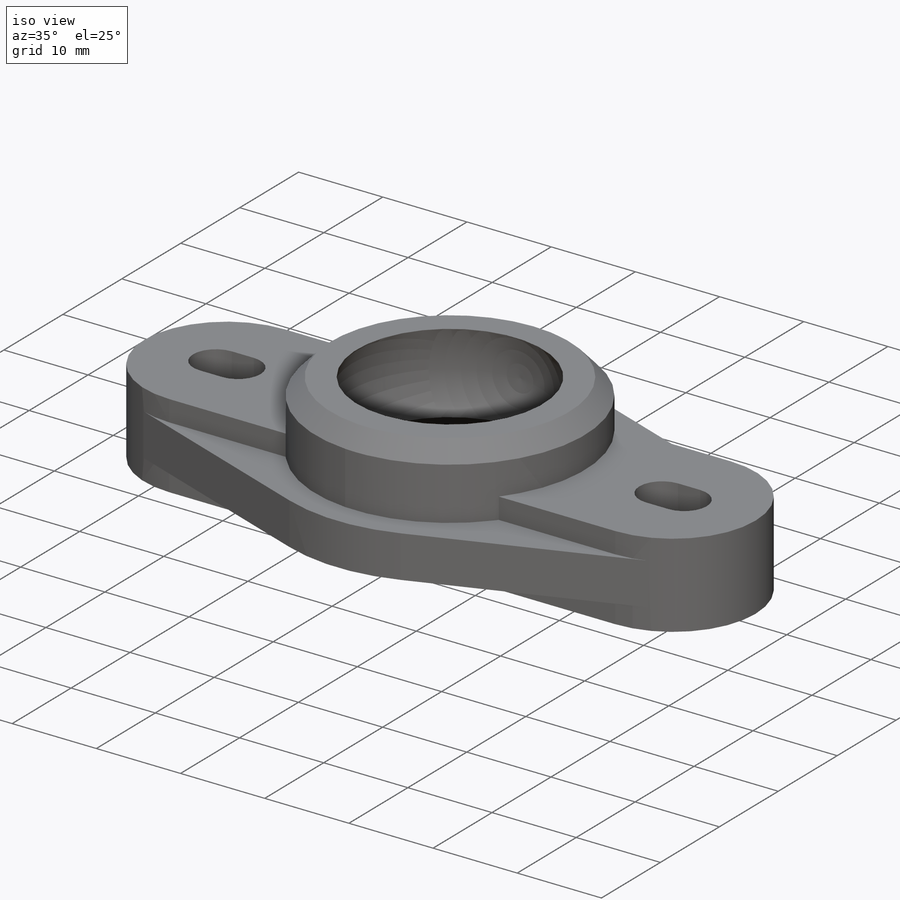
[diagram: iso view]
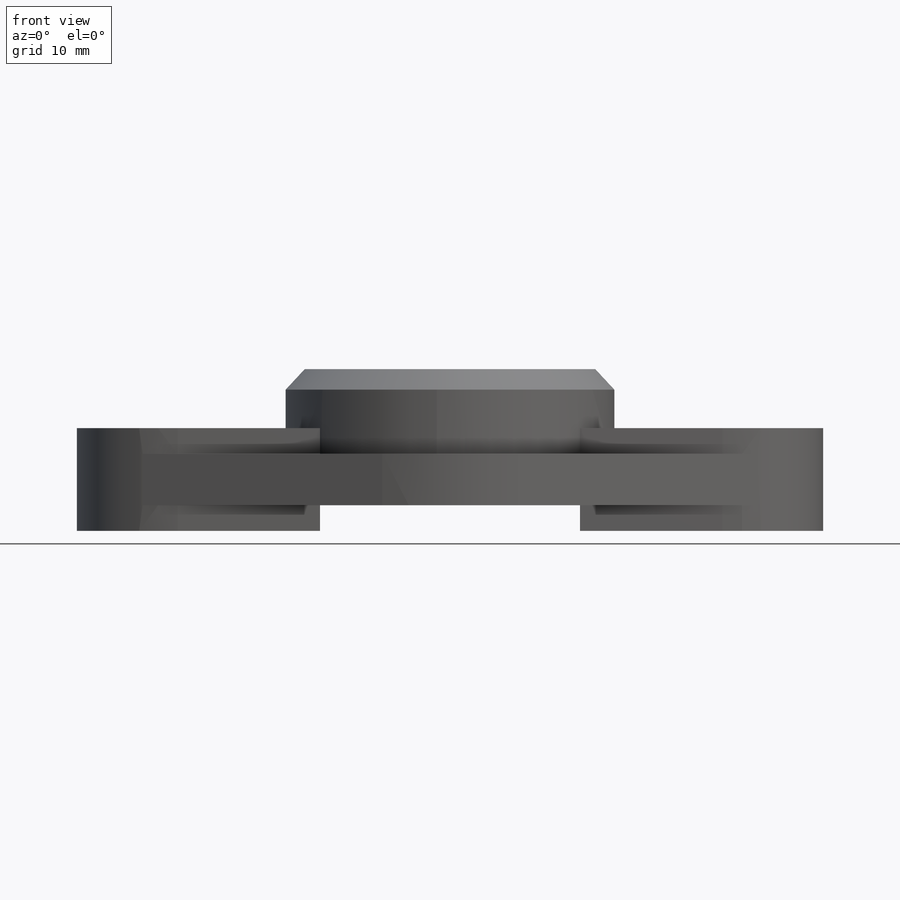
[diagram: front view]
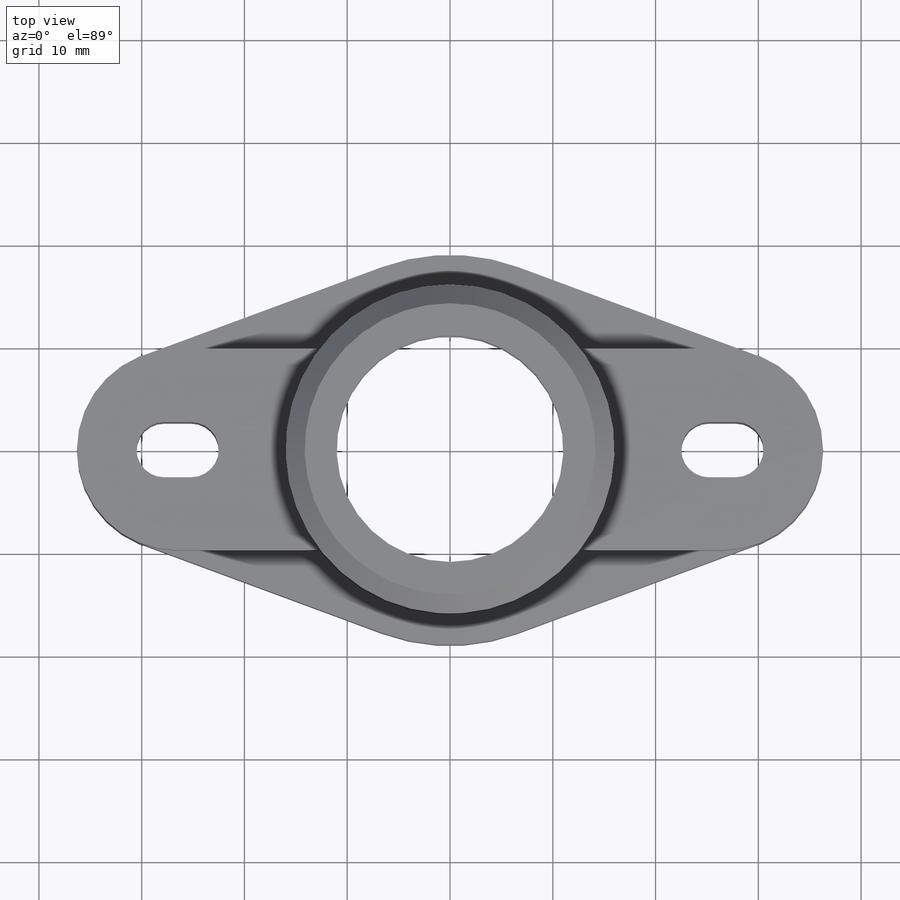
[diagram: top view]
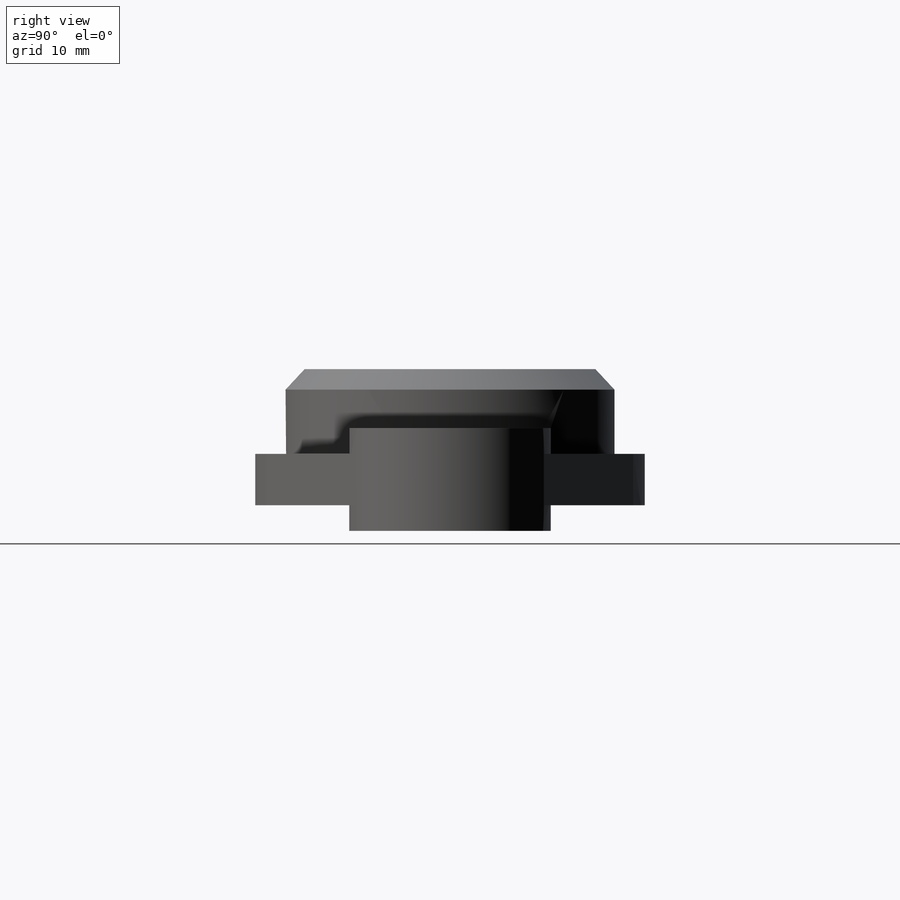
[diagram: right view]
SOLIDWORKS PART (.sldprt)
format: sldprt  version: not decoded by parser v0  size: 289,280 bytes
history: native  units: mm
features: sketch x8, extrude x3, cut_extrude x3, cut_revolve x2, material x1, chamfer x1, plane x1 (+13 scaffold rows collapsed)
feature tree (32):
  scaffold x13  (default folders/planes/origin — collapsed)
  material  "Material <not specified>"
  sketch  "Sketch1"  dims[c1.D2=~9.79932mm c1.D4=2.6924mm c1.D3=2.6924mm c2.D4=2.6924mm c2.D1=53.0098mm c2.D3=5.3848mm c3.D4=8.001mm c3.D5=2.6162mm]
  extrude  "Boss-Extrude1"  Depth=9.99998mm
  sketch  "Sketch2"  dims[D2=18.9992mm D1=37.9984mm]
  extrude  "Boss-Extrude2"  Depth=5.00126mm
  sketch  "Sketch4"  dims[D1=32.004mm]
  extrude  "Boss-Extrude3"  Depth=8.24992mm
  sketch  "Sketch5"  dims[D1=~22.060944mm]
  cut_extrude  "Cut-Extrude1"  [1 undecoded]
  sketch  "Sketch6"  dims[D1=~31.99892mm]
  cut_extrude  "Cut-Extrude2"  [1 undecoded]
  sketch  "Sketch7"  dims[D1=~3.74904mm D2=~3.46202mm]
  cut_revolve  "Cut-Revolve1"  Angle=360deg
  sketch  "Sketch8"  dims[D1=0.0mm]
  cut_extrude  "Cut-Extrude3"  Depth=9.4996mm
  chamfer  "Chamfer2"  Distance=1.99898mm
  plane  "Plane1"
  sketch  "Sketch9"  dims[D1=~24.00046mm]
  cut_revolve  "Cut-Revolve2"  Angle=360deg
decode coverage: 15 of 17 modeling features carry decoded parameters
note: ~ marks probable driven/reference dimensions
note: 2 parameter values undecoded
note: suppression state not decoded; provenance and decode notes live in map.json
